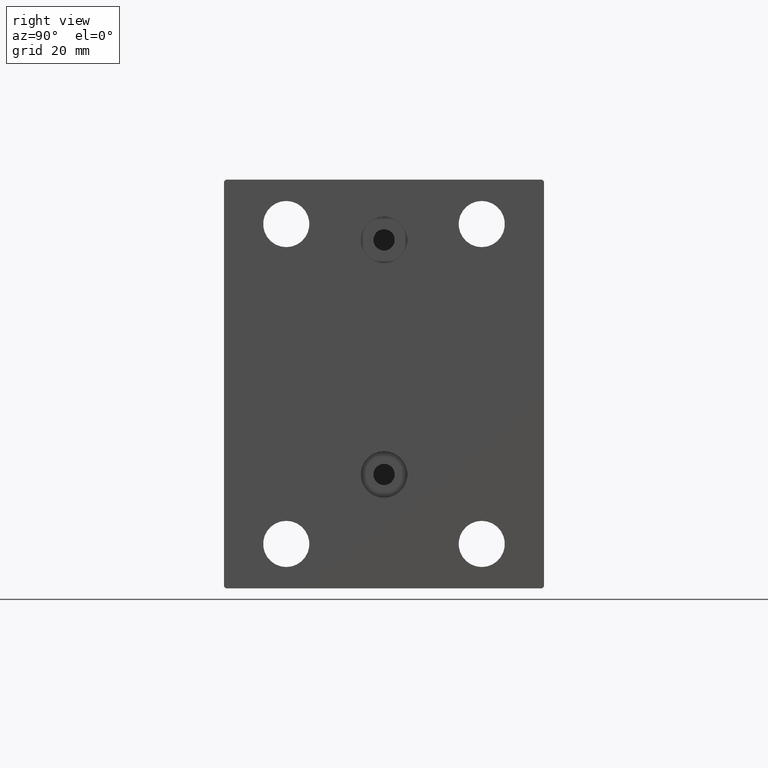
[diagram: clean part render]
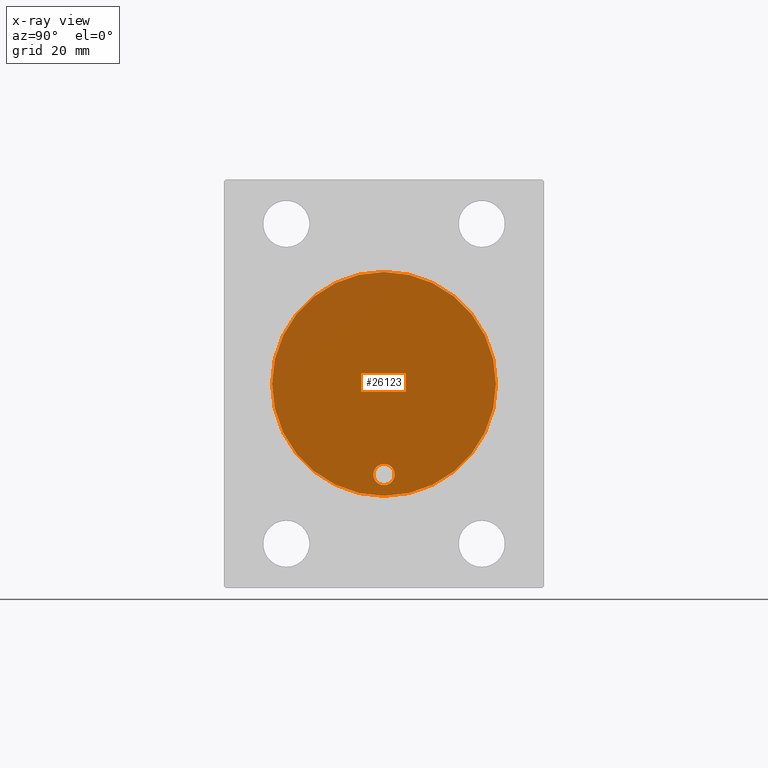
[diagram: x-ray — body ghosted, one internal face saturated and labeled with its STEP entity id]
A machine part, right view, then the same camera in x-ray: the body is ghosted and one INTERNAL B-rep face — a face not visible from any outside direction — is saturated and labeled: STEP entity #26123.
In plain terms, the highlighted planar face has unit normal (-1, 0, 0).
Its self-contained STEP definition (entity closure, byte-faithful):
#1671 = EDGE_LOOP ( 'NONE', ( #37915, #11164 ) ) ;
#2190 = VERTEX_POINT ( 'NONE', #43306 ) ;
#3842 = CARTESIAN_POINT ( 'NONE',  ( 51.00000000000000000, 3.122849337825749828E-15, -25.49999999999999645 ) ) ;
#4405 = DIRECTION ( 'NONE',  ( -1.000000000000000000, 0.000000000000000000, 0.000000000000000000 ) ) ;
#4891 = EDGE_CURVE ( 'NONE', #2190, #38326, #28705, .T. ) ;
#7293 = DIRECTION ( 'NONE',  ( 0.000000000000000000, 0.000000000000000000, 1.000000000000000000 ) ) ;
#7402 = PLANE ( 'NONE',  #30455 ) ;
#7578 = DIRECTION ( 'NONE',  ( -1.000000000000000000, 0.000000000000000000, 0.000000000000000000 ) ) ;
#7888 = CIRCLE ( 'NONE', #40942, 31.50000000000000000 ) ;
#10223 = CIRCLE ( 'NONE', #19074, 3.000000000000002665 ) ;
#10413 = DIRECTION ( 'NONE',  ( 0.000000000000000000, 0.000000000000000000, 1.000000000000000000 ) ) ;
#10514 = VERTEX_POINT ( 'NONE', #43571 ) ;
#11074 = CARTESIAN_POINT ( 'NONE',  ( 51.00000000000000000, 3.490243377569955667E-15, -22.49999999999999289 ) ) ;
#11164 = ORIENTED_EDGE ( 'NONE', *, *, #44534, .F. ) ;
#14354 = CIRCLE ( 'NONE', #40803, 31.50000000000000000 ) ;
#14545 = CARTESIAN_POINT ( 'NONE',  ( 51.00000000000000000, 0.000000000000000000, 0.000000000000000000 ) ) ;
#18394 = DIRECTION ( 'NONE',  ( 0.000000000000000000, 0.000000000000000000, 1.000000000000000000 ) ) ;
#19074 = AXIS2_PLACEMENT_3D ( 'NONE', #3842, #31674, #7293 ) ;
#19767 = CARTESIAN_POINT ( 'NONE',  ( 51.00000000000000000, 3.857637417314162689E-15, -31.50000000000000000 ) ) ;
#19784 = ORIENTED_EDGE ( 'NONE', *, *, #38865, .T. ) ;
#20983 = EDGE_CURVE ( 'NONE', #10514, #41862, #14354, .T. ) ;
#21449 = FACE_OUTER_BOUND ( 'NONE', #35586, .T. ) ;
#24039 = DIRECTION ( 'NONE',  ( 0.000000000000000000, 0.000000000000000000, 1.000000000000000000 ) ) ;
#25215 = DIRECTION ( 'NONE',  ( -1.000000000000000000, 0.000000000000000000, 0.000000000000000000 ) ) ;
#26123 = ADVANCED_FACE ( 'NONE', ( #35223, #21449 ), #7402, .T. ) ;
#28705 = CIRCLE ( 'NONE', #43369, 3.000000000000002665 ) ;
#29350 = CARTESIAN_POINT ( 'NONE',  ( 51.00000000000000000, 0.000000000000000000, 0.000000000000000000 ) ) ;
#30455 = AXIS2_PLACEMENT_3D ( 'NONE', #14545, #4405, #10413 ) ;
#31674 = DIRECTION ( 'NONE',  ( -1.000000000000000000, 0.000000000000000000, 0.000000000000000000 ) ) ;
#35223 = FACE_BOUND ( 'NONE', #1671, .T. ) ;
#35317 = DIRECTION ( 'NONE',  ( 0.000000000000000000, 0.000000000000000000, 1.000000000000000000 ) ) ;
#35586 = EDGE_LOOP ( 'NONE', ( #41760, #19784 ) ) ;
#37915 = ORIENTED_EDGE ( 'NONE', *, *, #4891, .F. ) ;
#38326 = VERTEX_POINT ( 'NONE', #11074 ) ;
#38865 = EDGE_CURVE ( 'NONE', #41862, #10514, #7888, .T. ) ;
#40803 = AXIS2_PLACEMENT_3D ( 'NONE', #45524, #7578, #18394 ) ;
#40942 = AXIS2_PLACEMENT_3D ( 'NONE', #29350, #25215, #35317 ) ;
#41760 = ORIENTED_EDGE ( 'NONE', *, *, #20983, .T. ) ;
#41862 = VERTEX_POINT ( 'NONE', #19767 ) ;
#43306 = CARTESIAN_POINT ( 'NONE',  ( 51.00000000000000000, 3.122849337825749828E-15, -28.49999999999999645 ) ) ;
#43369 = AXIS2_PLACEMENT_3D ( 'NONE', #45399, #44507, #24039 ) ;
#43571 = CARTESIAN_POINT ( 'NONE',  ( 51.00000000000000000, 0.000000000000000000, 31.50000000000000000 ) ) ;
#44507 = DIRECTION ( 'NONE',  ( -1.000000000000000000, 0.000000000000000000, 0.000000000000000000 ) ) ;
#44534 = EDGE_CURVE ( 'NONE', #38326, #2190, #10223, .T. ) ;
#45399 = CARTESIAN_POINT ( 'NONE',  ( 51.00000000000000000, 3.122849337825749828E-15, -25.49999999999999645 ) ) ;
#45524 = CARTESIAN_POINT ( 'NONE',  ( 51.00000000000000000, 0.000000000000000000, 0.000000000000000000 ) ) ;